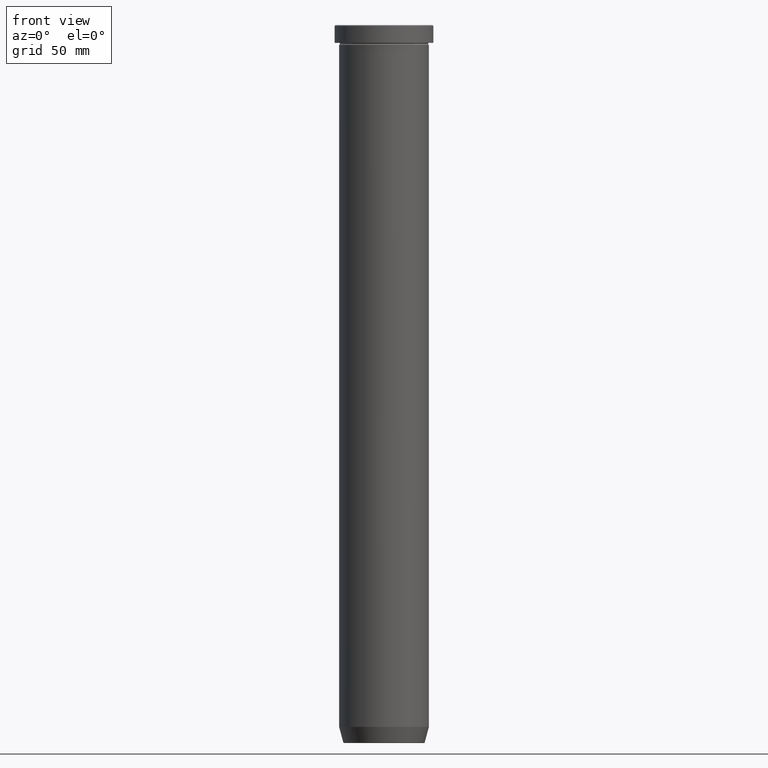
[diagram: clean part render]
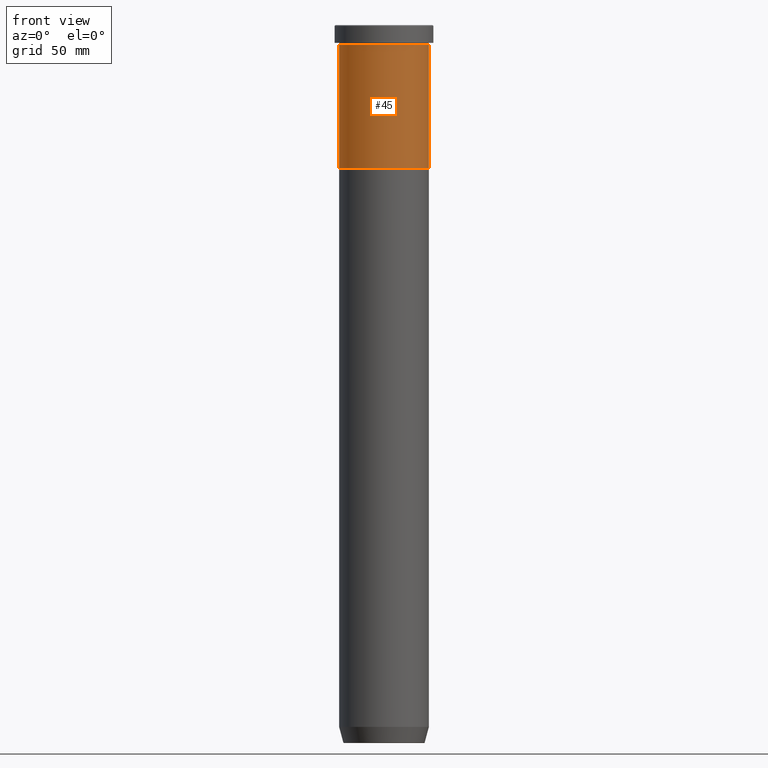
[diagram: same view with one face highlighted and labeled with its STEP entity id]
A machine part, front view. The second image highlights one B-rep face of the part: STEP entity #45.
In plain terms, the highlighted cylindrical surface (partial cylindrical patch) has radius 25 mm, axis along (-0, -0, 1).
Its self-contained STEP definition (entity closure, byte-faithful):
#6 = ORIENTED_EDGE ( 'NONE', *, *, #370, .F. ) ;
#13 = DIRECTION ( 'NONE',  ( -0.000000000000000000, -0.000000000000000000, 1.000000000000000000 ) ) ;
#45 = ADVANCED_FACE ( 'NONE', ( #458 ), #599, .T. ) ;
#52 = VECTOR ( 'NONE', #395, 1000.000000000000000 ) ;
#56 = DIRECTION ( 'NONE',  ( 1.000000000000000000, 0.000000000000000000, 0.000000000000000000 ) ) ;
#62 = DIRECTION ( 'NONE',  ( -0.000000000000000000, -0.000000000000000000, 1.000000000000000000 ) ) ;
#75 = CARTESIAN_POINT ( 'NONE',  ( -25.00000000000000711, 3.061616997868383831E-15, -80.00000000000000000 ) ) ;
#82 = CIRCLE ( 'NONE', #318, 25.00000000000000355 ) ;
#95 = DIRECTION ( 'NONE',  ( 1.000000000000000000, 0.000000000000000000, 0.000000000000000000 ) ) ;
#98 = AXIS2_PLACEMENT_3D ( 'NONE', #324, #131, #321 ) ;
#104 = CARTESIAN_POINT ( 'NONE',  ( -25.00000000000000000, 3.061616997868383043E-15, -11.00000000000000000 ) ) ;
#115 = CARTESIAN_POINT ( 'NONE',  ( 25.00000000000000000, 0.000000000000000000, -11.00000000000000000 ) ) ;
#117 = CARTESIAN_POINT ( 'NONE',  ( 25.00000000000000000, 0.000000000000000000, 0.000000000000000000 ) ) ;
#131 = DIRECTION ( 'NONE',  ( -0.000000000000000000, -0.000000000000000000, 1.000000000000000000 ) ) ;
#174 = CIRCLE ( 'NONE', #553, 25.00000000000000000 ) ;
#222 = EDGE_LOOP ( 'NONE', ( #374, #269, #585, #6 ) ) ;
#223 = EDGE_CURVE ( 'NONE', #226, #550, #322, .T. ) ;
#226 = VERTEX_POINT ( 'NONE', #75 ) ;
#267 = CARTESIAN_POINT ( 'NONE',  ( -25.00000000000000000, 3.061616997868383043E-15, 0.000000000000000000 ) ) ;
#268 = EDGE_CURVE ( 'NONE', #360, #314, #349, .T. ) ;
#269 = ORIENTED_EDGE ( 'NONE', *, *, #340, .T. ) ;
#276 = CARTESIAN_POINT ( 'NONE',  ( 0.000000000000000000, 0.000000000000000000, -80.00000000000000000 ) ) ;
#314 = VERTEX_POINT ( 'NONE', #115 ) ;
#318 = AXIS2_PLACEMENT_3D ( 'NONE', #276, #13, #95 ) ;
#321 = DIRECTION ( 'NONE',  ( 1.000000000000000000, 0.000000000000000000, 0.000000000000000000 ) ) ;
#322 = LINE ( 'NONE', #267, #486 ) ;
#324 = CARTESIAN_POINT ( 'NONE',  ( 0.000000000000000000, 0.000000000000000000, 0.000000000000000000 ) ) ;
#338 = CARTESIAN_POINT ( 'NONE',  ( 0.000000000000000000, 0.000000000000000000, -11.00000000000000000 ) ) ;
#340 = EDGE_CURVE ( 'NONE', #226, #360, #82, .T. ) ;
#349 = LINE ( 'NONE', #117, #52 ) ;
#360 = VERTEX_POINT ( 'NONE', #377 ) ;
#370 = EDGE_CURVE ( 'NONE', #550, #314, #174, .T. ) ;
#374 = ORIENTED_EDGE ( 'NONE', *, *, #223, .F. ) ;
#377 = CARTESIAN_POINT ( 'NONE',  ( 25.00000000000000355, 0.000000000000000000, -80.00000000000000000 ) ) ;
#395 = DIRECTION ( 'NONE',  ( -0.000000000000000000, -0.000000000000000000, 1.000000000000000000 ) ) ;
#405 = DIRECTION ( 'NONE',  ( -0.000000000000000000, -0.000000000000000000, 1.000000000000000000 ) ) ;
#458 = FACE_OUTER_BOUND ( 'NONE', #222, .T. ) ;
#486 = VECTOR ( 'NONE', #405, 1000.000000000000000 ) ;
#550 = VERTEX_POINT ( 'NONE', #104 ) ;
#553 = AXIS2_PLACEMENT_3D ( 'NONE', #338, #62, #56 ) ;
#585 = ORIENTED_EDGE ( 'NONE', *, *, #268, .T. ) ;
#599 = CYLINDRICAL_SURFACE ( 'NONE', #98, 25.00000000000000000 ) ;